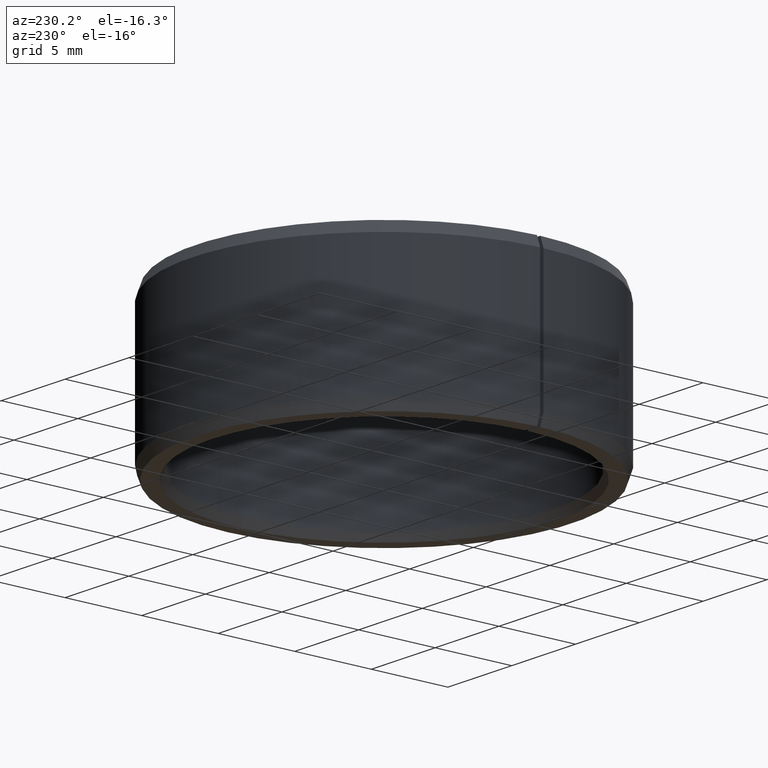
[diagram: clean part render]
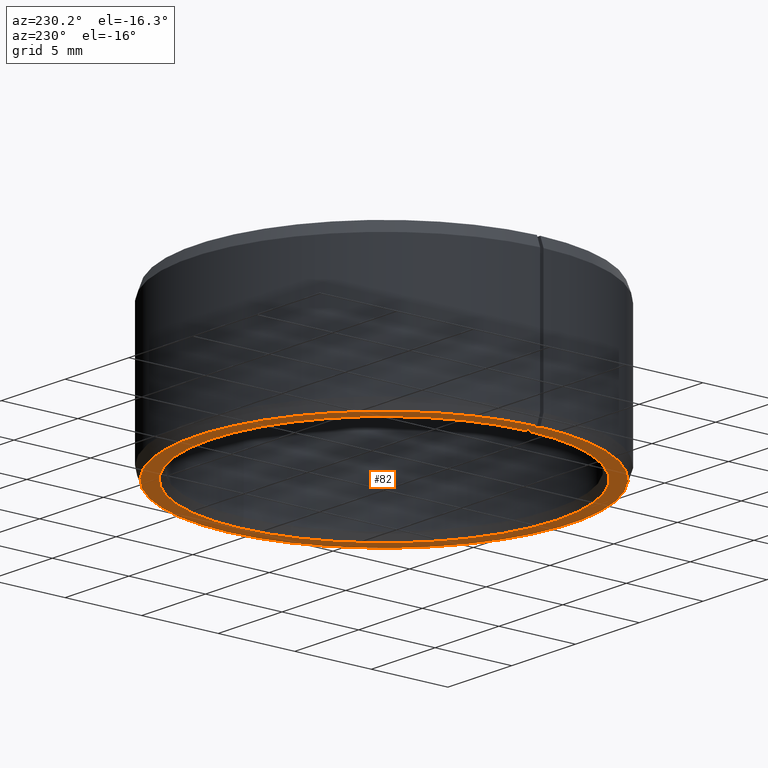
[diagram: same view with one face highlighted and labeled with its STEP entity id]
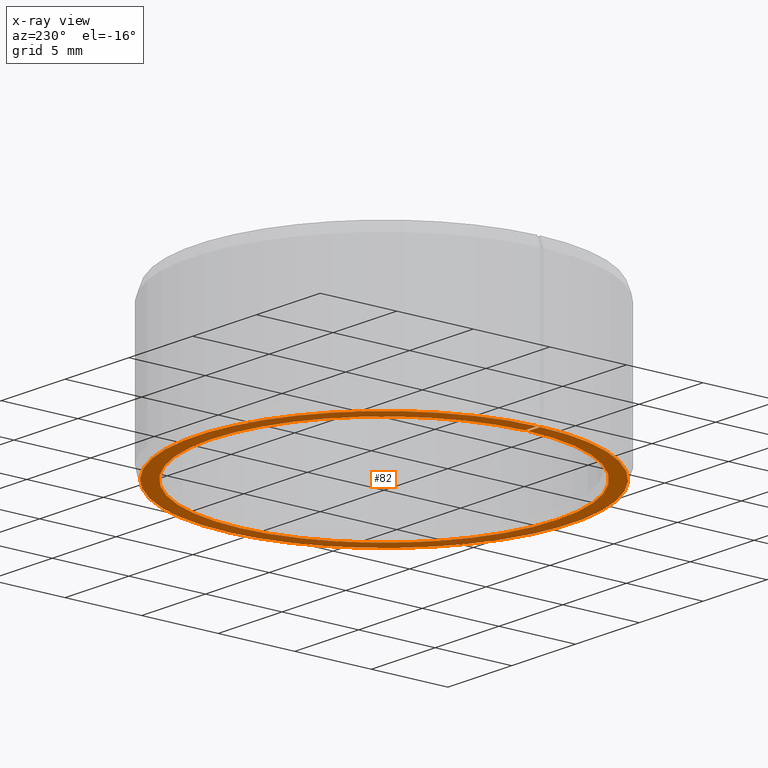
[diagram: x-ray of the same camera — body ghosted, the highlighted face saturated]
A machine part, auxiliary view. The second image highlights one B-rep face of the part: STEP entity #82.
The next image is the same camera in x-ray: the body ghosted, the highlighted face saturated — about 0% of this face is hidden behind the body in this view.
In plain terms, the highlighted planar face has unit normal (-0, 0, -1).
Its self-contained STEP definition (entity closure, byte-faithful):
#82=ADVANCED_FACE('',(#106),#107,.T.);
#106=FACE_OUTER_BOUND('',#138,.T.);
#107=PLANE('',#139);
#138=EDGE_LOOP('',(#205,#206,#207,#208,#209,#210));
#139=AXIS2_PLACEMENT_3D('',#211,#212,#213);
#205=ORIENTED_EDGE('',*,*,#303,.T.);
#206=ORIENTED_EDGE('',*,*,#304,.F.);
#207=ORIENTED_EDGE('',*,*,#296,.F.);
#208=ORIENTED_EDGE('',*,*,#305,.F.);
#209=ORIENTED_EDGE('',*,*,#300,.T.);
#210=ORIENTED_EDGE('',*,*,#299,.T.);
#211=CARTESIAN_POINT('',(-11.7669479853042,2.22996382857295E-014,7.73279603807488E-015));
#212=DIRECTION('',(-6.37304531528356E-016,6.09939603923744E-016,-1.0));
#213=DIRECTION('',(1.0,-1.89882151931499E-015,-6.37304531528357E-016));
#296=EDGE_CURVE('',#346,#344,#348,.T.);
#299=EDGE_CURVE('',#349,#351,#353,.T.);
#300=EDGE_CURVE('',#354,#349,#355,.T.);
#303=EDGE_CURVE('',#351,#359,#360,.T.);
#304=EDGE_CURVE('',#344,#359,#361,.T.);
#305=EDGE_CURVE('',#354,#346,#362,.T.);
#344=VERTEX_POINT('',#414);
#346=VERTEX_POINT('',#417);
#348=CIRCLE('',#420,12.2452208360137);
#349=VERTEX_POINT('',#421);
#351=VERTEX_POINT('',#424);
#353=CIRCLE('',#427,11.2886751345948);
#354=VERTEX_POINT('',#428);
#355=CIRCLE('',#429,11.2886751345948);
#359=VERTEX_POINT('',#434);
#360=LINE('',#435,#436);
#361=CIRCLE('',#437,12.2452208360137);
#362=LINE('',#438,#439);
#414=CARTESIAN_POINT('',(12.2452208360137,-2.54886060841094E-014,-5.33126284081167E-015));
#417=CARTESIAN_POINT('',(-12.2452208360137,2.29661114886094E-014,8.03760149313898E-015));
#420=AXIS2_PLACEMENT_3D('',#492,#493,#494);
#421=CARTESIAN_POINT('',(11.2886751345948,-2.35612766928947E-014,-4.80639926612734E-015));
#424=CARTESIAN_POINT('',(-11.2869558146939,0.197014546587428,7.70767945087344E-015));
#427=AXIS2_PLACEMENT_3D('',#497,#498,#499);
#428=CARTESIAN_POINT('',(-11.2886751345948,2.16331650828497E-014,7.42799058301078E-015));
#429=AXIS2_PLACEMENT_3D('',#500,#501,#502);
#434=CARTESIAN_POINT('',(-12.2433558295693,0.213708570944427,8.24264543289731E-015));
#435=CARTESIAN_POINT('',(-11.2869558146939,0.197014546587428,7.56230584152884E-015));
#436=VECTOR('',#507,9.99999999999999);
#437=AXIS2_PLACEMENT_3D('',#508,#509,#510);
#438=CARTESIAN_POINT('',(-11.2886751345948,2.16331650828497E-014,7.42799058301078E-015));
#439=VECTOR('',#511,10.0);
#492=CARTESIAN_POINT('',(3.53303928312638E-016,-7.58941520739854E-016,1.40055521273414E-015));
#493=DIRECTION('',(5.48707263966375E-016,-6.09939603923743E-016,1.0));
#494=DIRECTION('',(-1.0,1.89882151931499E-015,5.48707263966376E-016));
#497=CARTESIAN_POINT('',(3.53303928312638E-016,-7.58941520739854E-016,1.40055521273414E-015));
#498=DIRECTION('',(5.48707263966375E-016,-6.09939603923743E-016,1.0));
#499=DIRECTION('',(-1.0,1.89882151931499E-015,5.48707263966376E-016));
#500=CARTESIAN_POINT('',(3.53303928312638E-016,-7.58941520739854E-016,1.40055521273414E-015));
#501=DIRECTION('',(5.48707263966375E-016,-6.09939603923743E-016,1.0));
#502=DIRECTION('',(-1.0,1.89882151931499E-015,5.48707263966376E-016));
#507=DIRECTION('',(-0.999847695156391,0.0174524064372856,6.47865874624205E-016));
#508=CARTESIAN_POINT('',(3.53303928312638E-016,-7.58941520739854E-016,1.40055521273414E-015));
#509=DIRECTION('',(5.48707263966375E-016,-6.09939603923743E-016,1.0));
#510=DIRECTION('',(-1.0,1.89882151931499E-015,5.48707263966376E-016));
#511=DIRECTION('',(-1.0,1.89882151931499E-015,6.37304531528357E-016));